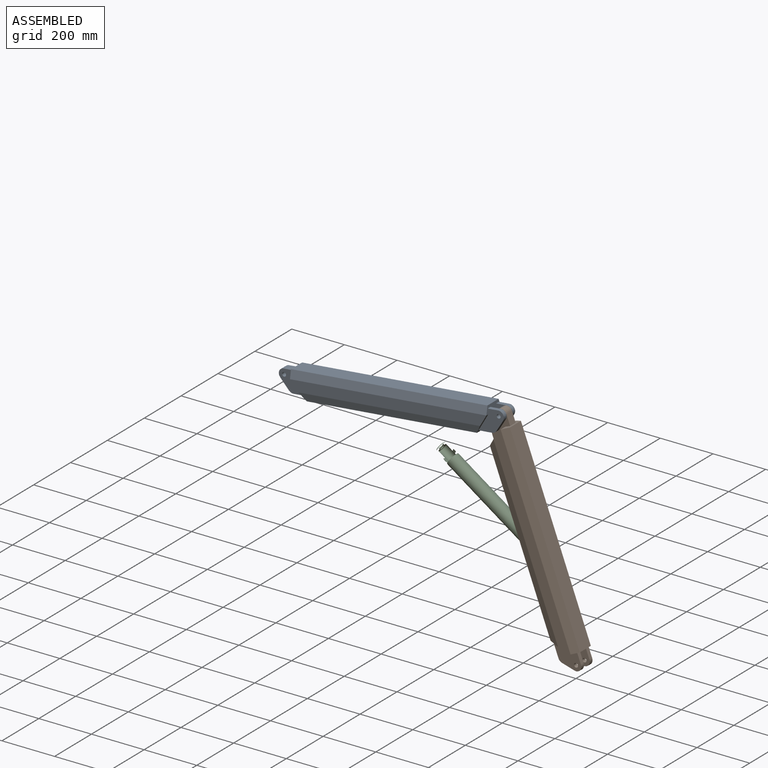
[diagram: assembled view]
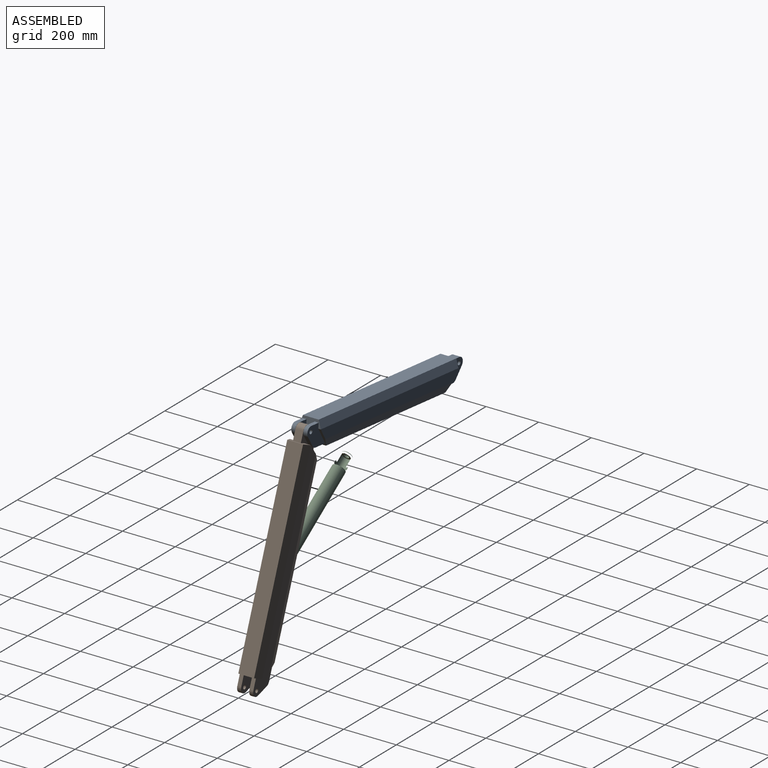
[diagram: assembled view, second angle]
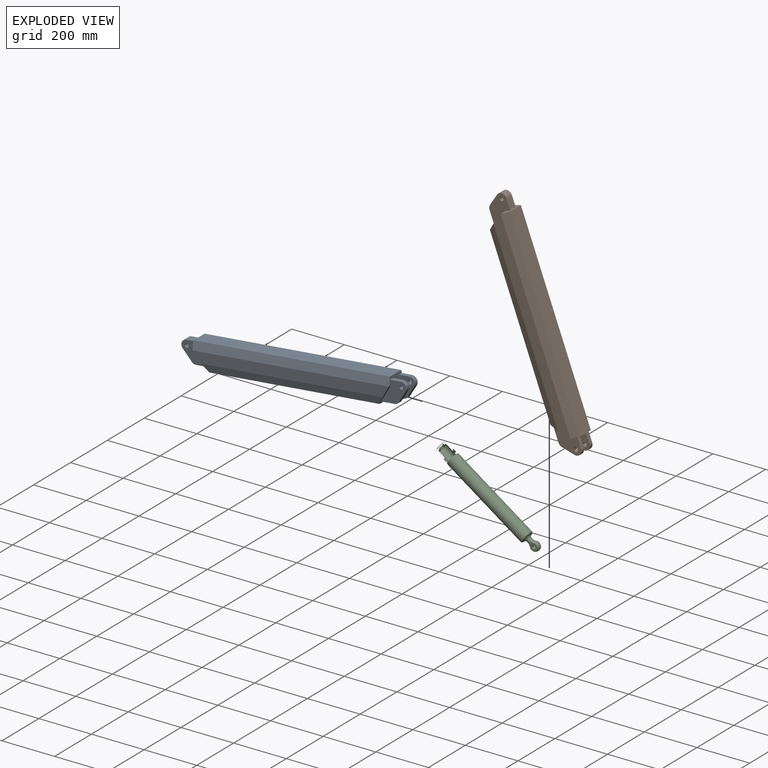
[diagram: exploded view]
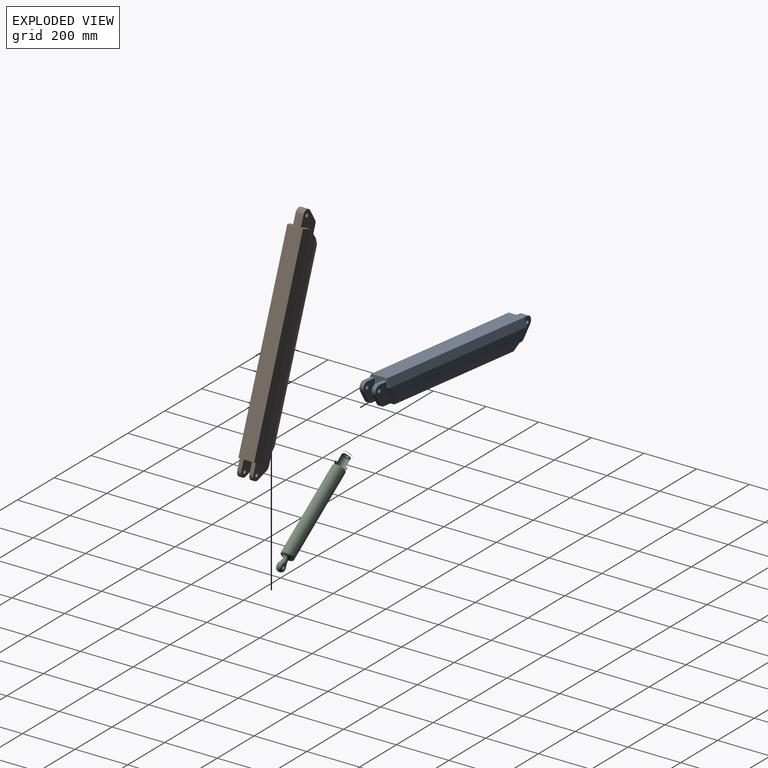
[diagram: exploded view, second angle]
ASSEMBLY  parts=3 mates=2
PART A: 44 faces, bbox 870x80x100 mm
  f0: plane 650x60mm, normal (0,0,-1), area 20400mm2, adj f27,f28,f29,f31,f36,f37,f38,f39
  f1: plane 40x30mm, normal (0,0,1), area 1200mm2, adj f2,f15,f18,f19
  f2: cylinder r=20mm len=32mm, axis (0,1,0), area 1328.6mm2, adj f1,f3,f18,f19
  f3: plane 40x30mm, normal (-0.8,0,-0.6), area 1500mm2, adj f2,f18,f19,f35
  f4: plane 52.86x30mm, normal (0,0,-1), area 1585.7mm2, adj f18,f19,f28,f35
  f5: plane 52.86x15mm, normal (0,0,-1), area 792.9mm2, adj f20,f22,f27,f33
  f6: plane 52.86x15mm, normal (0,0,-1), area 792.9mm2, adj f21,f23,f27,f34
  f7: plane 40x30mm, normal (0.8,0,-0.6), area 750mm2, adj f9,f20,f22,f33
  f8: plane 40x30mm, normal (0.8,0,-0.6), area 750mm2, adj f10,f21,f23,f34
  f9: cylinder r=20mm len=32mm, axis (0,1,0), area 664.3mm2, adj f7,f11,f20,f22
  f10: cylinder r=20mm len=32mm, axis (0,1,0), area 664.3mm2, adj f8,f12,f21,f23
  f11: plane 40x15mm, normal (0,0,1), area 600mm2, adj f9,f16,f20,f22
  f12: plane 40x15mm, normal (0,0,1), area 600mm2, adj f10,f16,f21,f23
  f13: plane 750x40mm, normal (0,-1,0), area 28857.1mm2, adj f27,f28,f31,f32
  f14: plane 750x40mm, normal (0,1,0), area 28857.1mm2, adj f27,f28,f29,f30
  f15: plane 80x30mm, normal (-1,0,0), area 1500mm2, adj f1,f17,f18,f19,f28,f30,f32
  f16: plane 80x30mm, normal (1,0,0), area 1500mm2, adj f11,f12,f17,f20,f21,f22,f23,f27
  f17: plane 750x60mm, normal (0,0,1), area 45000mm2, adj f15,f16,f30,f32
  f18: plane 102.86x80mm, normal (0,1,0), area 4737.3mm2, adj f1,f2,f3,f4,f15,f24,f28,f35
  f19: plane 102.86x80mm, normal (0,-1,0), area 4737.3mm2, adj f1,f2,f3,f4,f15,f24,f28,f35
  f20: plane 102.86x80mm, normal (0,1,0), area 4737.3mm2, adj f5,f7,f9,f11,f16,f25,f27,f33
  f21: plane 102.86x80mm, normal (0,-1,0), area 4737.3mm2, adj f6,f8,f10,f12,f16,f26,f27,f34
  f22: plane 102.86x80mm, normal (0,-1,0), area 4737.3mm2, adj f5,f7,f9,f11,f16,f25,f27,f33
  f23: plane 102.86x80mm, normal (0,1,0), area 4737.3mm2, adj f6,f8,f10,f12,f16,f26,f27,f34
  f24: cylinder r=7.5mm len=30mm, axis (0,1,0), area 1413.7mm2, adj f18,f19
  f25: cylinder r=7.5mm len=15mm, axis (0,1,0), area 706.9mm2, adj f20,f22
  f26: cylinder r=7.5mm len=15mm, axis (0,1,0), area 706.9mm2, adj f21,f23
  f27: plane 80x70mm, normal (0.81,0,-0.58), area 4301.2mm2, adj f0,f5,f6,f13,f14,f16,f20,f21
  f28: plane 80x70mm, normal (-0.81,0,-0.58), area 4301.2mm2, adj f0,f4,f13,f14,f15,f18,f19,f29
  f29: plane 692.86x30mm, normal (0,0.95,-0.32), area 21232.4mm2, adj f0,f14,f27,f28
  f30: plane 750x30mm, normal (0,0.95,0.32), area 23717.1mm2, adj f14,f15,f16,f17
  f31: plane 692.86x30mm, normal (0,-0.95,-0.32), area 21232.4mm2, adj f0,f13,f27,f28
  f32: plane 750x30mm, normal (0,-0.95,0.32), area 23717.1mm2, adj f13,f15,f16,f17
  f33: cylinder r=20mm len=16mm, axis (0,-1,0), area 278.2mm2, adj f5,f7,f20,f22
  f34: cylinder r=20mm len=16mm, axis (0,-1,0), area 278.2mm2, adj f6,f8,f21,f23
  f35: cylinder r=20mm len=30mm, axis (0,1,0), area 556.4mm2, adj f3,f4,f18,f19
  f36: plane 620x85mm, normal (0,-1,0), area 52255mm2, adj f0,f37,f39,f40,f41,f42,f43
  f37: plane 60x30mm, normal (-1,0,0), area 1800mm2, adj f0,f36,f38,f41
  f38: plane 620x85mm, normal (0,1,0), area 52255mm2, adj f0,f37,f39,f40,f41,f42,f43
  f39: plane 60x30mm, normal (1,0,0), area 1800mm2, adj f0,f36,f38,f42
  f40: plane 570x30mm, normal (0,0,-1), area 17100mm2, adj f36,f38,f41,f42
  f41: cylinder r=25mm len=30mm, axis (0,-1,0), area 1178.1mm2, adj f36,f37,f38,f40
  f42: cylinder r=25mm len=30mm, axis (0,1,0), area 1178.1mm2, adj f36,f38,f39,f40
  f43: cylinder r=7.5mm len=30mm, axis (0,1,0), area 1413.7mm2, adj f36,f38
PART B: same geometry as A
PART C: 22 faces, bbox 52.4x455.5x52.4 mm
  f0: sphere r=17.5mm, area 1341.6mm2, adj f1,f11,f13
  f1: torus R=39.48mm, axis (0,1,0), area 865.2mm2, adj f0,f12,f14,f20
  f2: plane 32x32mm, normal (0,-1,0), area 804.2mm2, adj f7
  f3: cylinder r=24mm len=330.85mm, axis (0,-1,0), area 49890.8mm2, adj f19,f21
  f4: plane 32.48x32.48mm, normal (0,-1,0), area 514.4mm2, adj f5,f18
  f5: cylinder r=10mm len=20mm, axis (0,-1,0), area 502.7mm2, adj f4,f6
  f6: plane 32x32mm, normal (0,1,0), area 490.1mm2, adj f5,f7
  f7: cylinder r=16mm len=384mm, axis (0,-1,0), area 38603.9mm2, adj f2,f6
  f8: plane 39.46x27.77mm, normal (-1,0,0), area 539.9mm2, adj f11,f12,f16
  f9: plane 39.46x27.77mm, normal (1,0,0), area 534.4mm2, adj f13,f14,f17
  f10: cylinder r=6.25mm len=18mm, axis (1,0,0), area 706.9mm2, adj f16,f17
  f11: cone r=13.66mm half-angle=59.6deg, axis (1,0,0), area 121.5mm2, adj f0,f8,f12
  f12: bspline ~23.52x16.66mm, area 42.7mm2, adj f1,f8,f11
  f13: cone r=15.26mm half-angle=59.6deg, axis (-1,0,0), area 121.5mm2, adj f0,f9,f14
  f14: bspline ~23.52x16.66mm, area 42.7mm2, adj f1,f9,f13
  f15: cone r=19mm half-angle=4.8deg, axis (0,1,0), area 7179.2mm2, adj f18,f19
  f16: cone r=6.75mm half-angle=45deg, axis (-1,0,0), area 28.9mm2, adj f8,f10
  f17: cone r=6.25mm half-angle=45deg, axis (1,0,0), area 28.9mm2, adj f9,f10
  f18: torus R=16.24mm, axis (0,1,0), area 507.2mm2, adj f4,f15
  f19: revolved ~48x48mm, area 1247.7mm2, adj f3,f15
  f20: torus R=19.5mm, axis (0,-1,0), area 1255.8mm2, adj f1,f21
  f21: torus R=19mm, axis (0,1,0), area 1074.7mm2, adj f3,f20
PLACE A rot(axis=(0,-1,0),5.7deg) t=(-277.05,36.8,-134.39)mm
PLACE B rot(axis=(0,1,0),69.3deg) t=(450.73,36.8,-48.19)mm fixed
PLACE C rot(axis=(-0.69,-0.69,0.22),155.7deg) t=(582.98,36.8,-385.8)mm
MATE revolute C.f16 <-> B.f43  axis (0,1,0) through (620.42,36.8,-411.66)mm
MATE revolute B.f2 <-> A.f9  axis (0,1,0) through (502.04,36.8,14)mm
